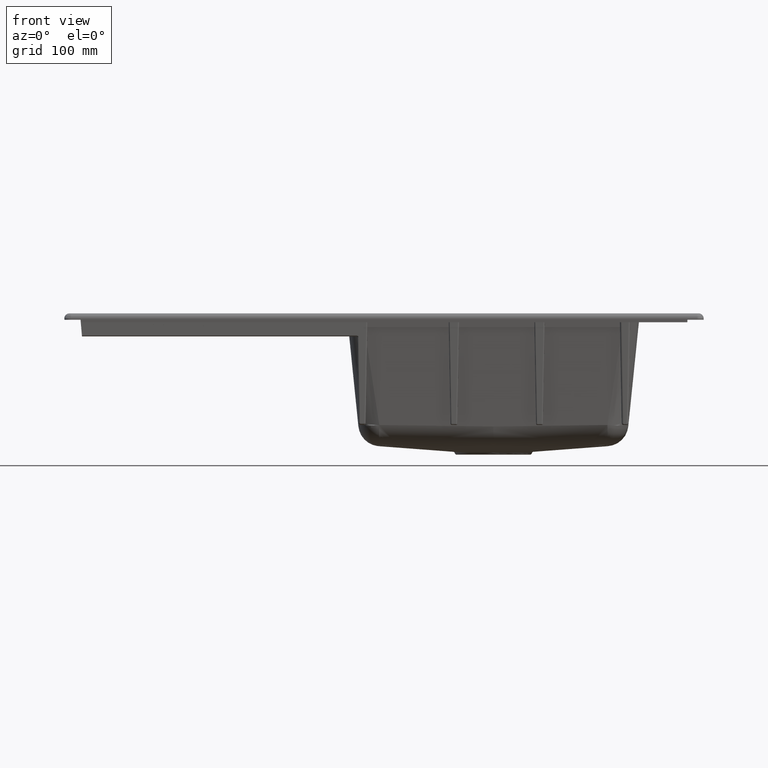
[diagram: clean part render]
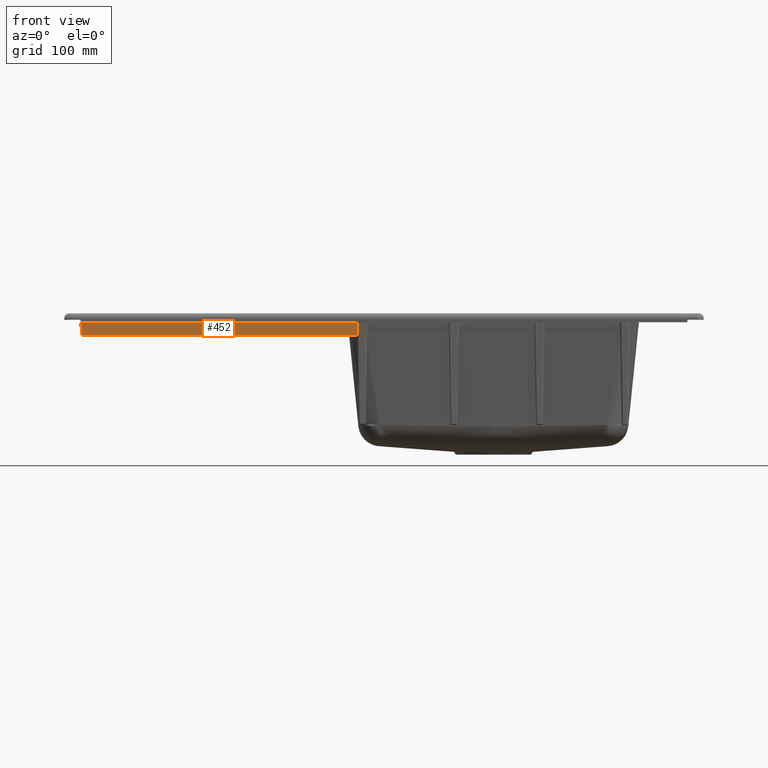
[diagram: same view with one face highlighted and labeled with its STEP entity id]
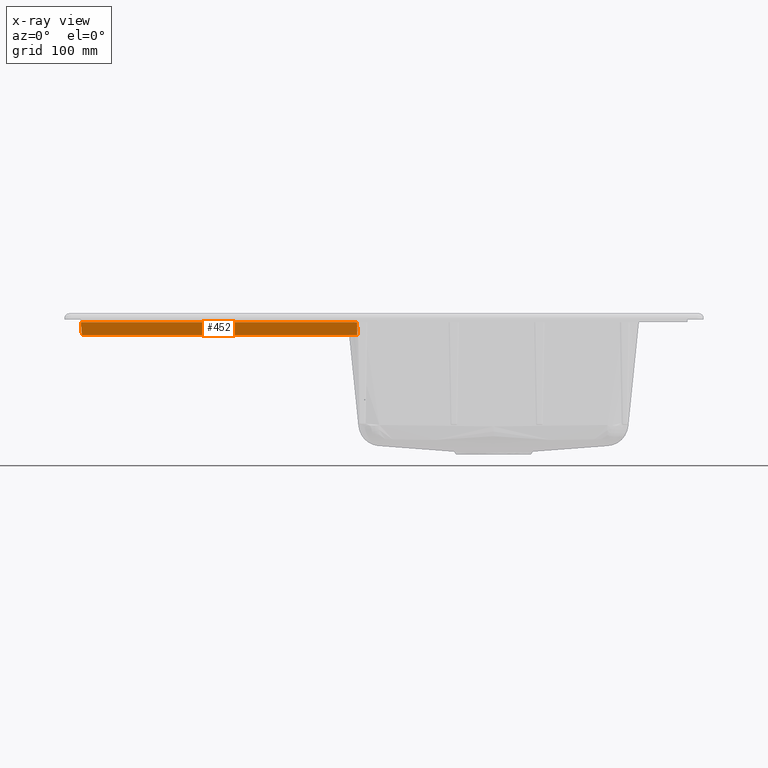
[diagram: x-ray of the same camera — body ghosted, the highlighted face saturated]
A machine part, front view. The second image highlights one B-rep face of the part: STEP entity #452.
The next image is the same camera in x-ray: the body ghosted, the highlighted face saturated — about 0% of this face is hidden behind the body in this view.
In plain terms, the highlighted planar face has unit normal (0, -0.9999, -0.0126).
Its self-contained STEP definition (entity closure, byte-faithful):
#452=ADVANCED_FACE('',(#687),#540,.T.);
#540=PLANE('',#3395);
#687=FACE_OUTER_BOUND('',#898,.T.);
#898=EDGE_LOOP('',(#2003,#2004,#2005,#2006,#2007,#2008));
#1225=B_SPLINE_CURVE_WITH_KNOTS('',3,(#18777,#18778,#18779,#18780,#18781,
#18782,#18783,#18784,#18785,#18786,#18787,#18788),.UNSPECIFIED.,.F.,.F.,
(4,2,2,2,2,4),(0.,0.00230477656817852,0.039608686283564,0.188824325145106,
0.785686880591273,1.),.UNSPECIFIED.);
#1226=B_SPLINE_CURVE_WITH_KNOTS('',3,(#18790,#18791,#18792,#18793,#18794,
#18795),.UNSPECIFIED.,.F.,.F.,(4,2,4),(0.,0.414956800155805,1.),
 .UNSPECIFIED.);
#1227=B_SPLINE_CURVE_WITH_KNOTS('',3,(#18797,#18798,#18799,#18800),
 .UNSPECIFIED.,.F.,.F.,(4,4),(0.,1.),.UNSPECIFIED.);
#2003=ORIENTED_EDGE('',*,*,#2975,.T.);
#2004=ORIENTED_EDGE('',*,*,#2620,.F.);
#2005=ORIENTED_EDGE('',*,*,#2973,.T.);
#2006=ORIENTED_EDGE('',*,*,#2976,.T.);
#2007=ORIENTED_EDGE('',*,*,#2977,.T.);
#2008=ORIENTED_EDGE('',*,*,#2978,.F.);
#2308=VERTEX_POINT('',#4262);
#2309=VERTEX_POINT('',#4264);
#2524=VERTEX_POINT('',#18770);
#2525=VERTEX_POINT('',#18776);
#2526=VERTEX_POINT('',#18789);
#2527=VERTEX_POINT('',#18796);
#2620=EDGE_CURVE('',#2308,#2309,#3092,.T.);
#2973=EDGE_CURVE('',#2308,#2524,#3141,.T.);
#2975=EDGE_CURVE('',#2525,#2309,#3143,.T.);
#2976=EDGE_CURVE('',#2524,#2526,#1225,.T.);
#2977=EDGE_CURVE('',#2526,#2527,#1226,.T.);
#2978=EDGE_CURVE('',#2525,#2527,#1227,.T.);
#3092=LINE('',#4263,#3211);
#3141=LINE('',#18771,#3264);
#3143=LINE('',#18775,#3266);
#3211=VECTOR('',#3531,1.);
#3264=VECTOR('',#3752,1.);
#3266=VECTOR('',#3758,1.);
#3395=AXIS2_PLACEMENT_3D('',#18801,#3759,#3760);
#3531=DIRECTION('',(1.,0.,0.));
#3752=DIRECTION('',(0.087148910779496,0.0125207804199355,-0.996116608338413));
#3758=DIRECTION('',(-0.0174510283306935,-0.0125666862690408,0.999768743263369));
#3759=DIRECTION('',(0.,-0.999921012024627,-0.0125686002261562));
#3760=DIRECTION('',(0.,-0.0125686002261562,0.999921012024627));
#4262=CARTESIAN_POINT('',(-645.350359360473,-226.005729817946,-13.8330000003289));
#4263=CARTESIAN_POINT('',(-648.361818873132,-226.005729817946,-13.8330000003289));
#4264=CARTESIAN_POINT('',(-213.095842046868,-226.005729817946,-13.8330000003289));
#18770=CARTESIAN_POINT('',(-643.583776263087,-225.751922870065,-34.0251372006302));
#18771=CARTESIAN_POINT('',(-641.89481024022,-225.509267253148,-53.3301071795836));
#18775=CARTESIAN_POINT('',(-213.090020782717,-226.001537858659,-14.1665000001644));
#18776=CARTESIAN_POINT('',(-213.084199518566,-225.997345899371,-14.5));
#18777=CARTESIAN_POINT('',(-643.583776263088,-225.751922870067,-34.0251372006112));
#18778=CARTESIAN_POINT('',(-643.254262767298,-225.751922870067,-34.025137200611));
#18779=CARTESIAN_POINT('',(-642.924749271508,-225.751922870067,-34.0251372006109));
#18780=CARTESIAN_POINT('',(-637.261902442385,-225.751922870067,-34.0251372006088));
#18781=CARTESIAN_POINT('',(-631.928569109052,-225.751922870067,-34.0251372006068));
#18782=CARTESIAN_POINT('',(-605.261902442385,-225.751922870067,-34.0251372005968));
#18783=CARTESIAN_POINT('',(-583.928569109052,-225.751922870067,-34.0251372005888));
#18784=CARTESIAN_POINT('',(-477.261902442385,-225.751922870068,-34.0251372005487));
#18785=CARTESIAN_POINT('',(-391.928569109052,-225.751922870068,-34.0251372005167));
#18786=CARTESIAN_POINT('',(-275.954927233426,-225.751922870069,-34.0251372004732));
#18787=CARTESIAN_POINT('',(-245.314618691135,-225.751922870069,-34.0251372004617));
#18788=CARTESIAN_POINT('',(-214.674310148843,-225.751922870069,-34.0251372004502));
#18789=CARTESIAN_POINT('',(-214.674310148843,-225.751922870069,-34.0251372004502));
#18790=CARTESIAN_POINT('',(-214.674310148843,-225.751922870069,-34.0251372004502));
#18791=CARTESIAN_POINT('',(-214.394124451486,-225.751922870069,-34.0251372004501));
#18792=CARTESIAN_POINT('',(-214.11240484387,-225.751548736062,-34.0549022059451));
#18793=CARTESIAN_POINT('',(-213.454188222178,-225.74978073434,-34.1955592432546));
#18794=CARTESIAN_POINT('',(-213.078231175376,-225.748010610675,-34.3363850961601));
#18795=CARTESIAN_POINT('',(-212.734628608933,-225.745615865579,-34.526904000142));
#18796=CARTESIAN_POINT('',(-212.734628608933,-225.74561586558,-34.5269040001419));
#18797=CARTESIAN_POINT('',(-213.084199518566,-225.997345899371,-14.4999999999999));
#18798=CARTESIAN_POINT('',(-212.967675882022,-225.913435888107,-21.1756346667139));
#18799=CARTESIAN_POINT('',(-212.851152245477,-225.829525876843,-27.8512693334279));
#18800=CARTESIAN_POINT('',(-212.734628608933,-225.74561586558,-34.5269040001419));
#18801=CARTESIAN_POINT('',(-197.994531456671,-225.997345899371,-14.5));